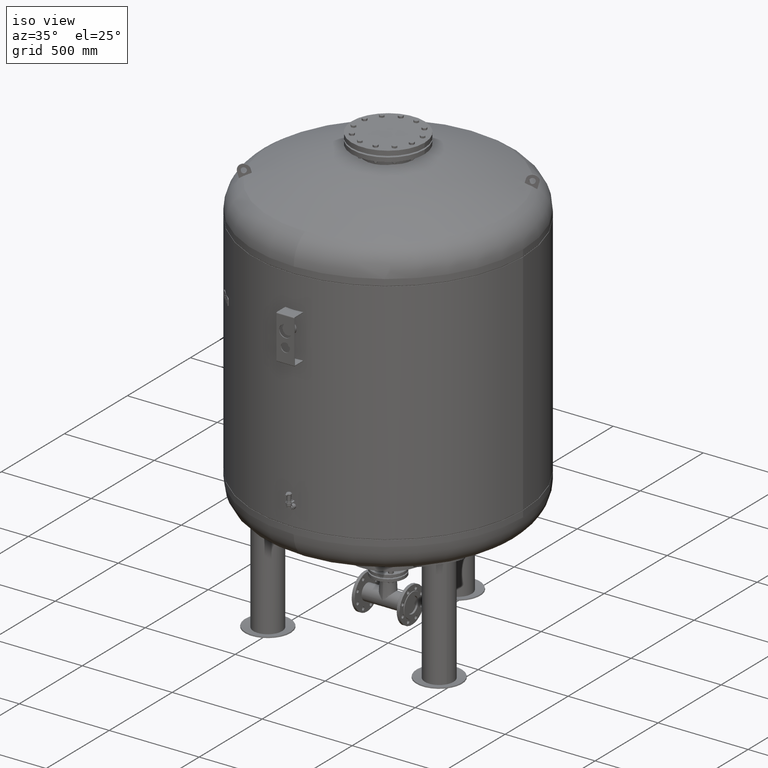
[diagram: clean part render]
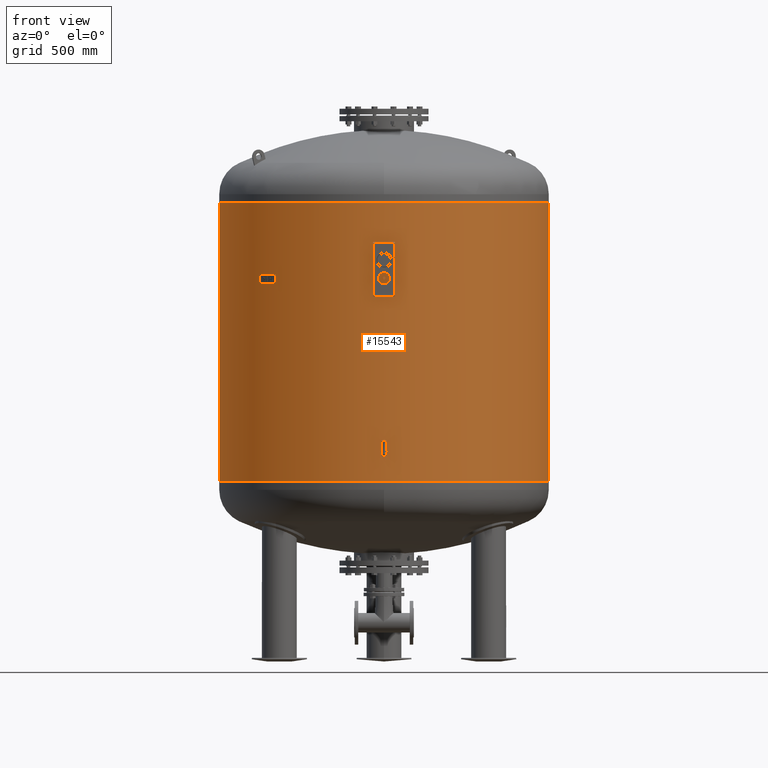
[diagram: tour spotlight — one face highlighted and labeled with its STEP entity id]
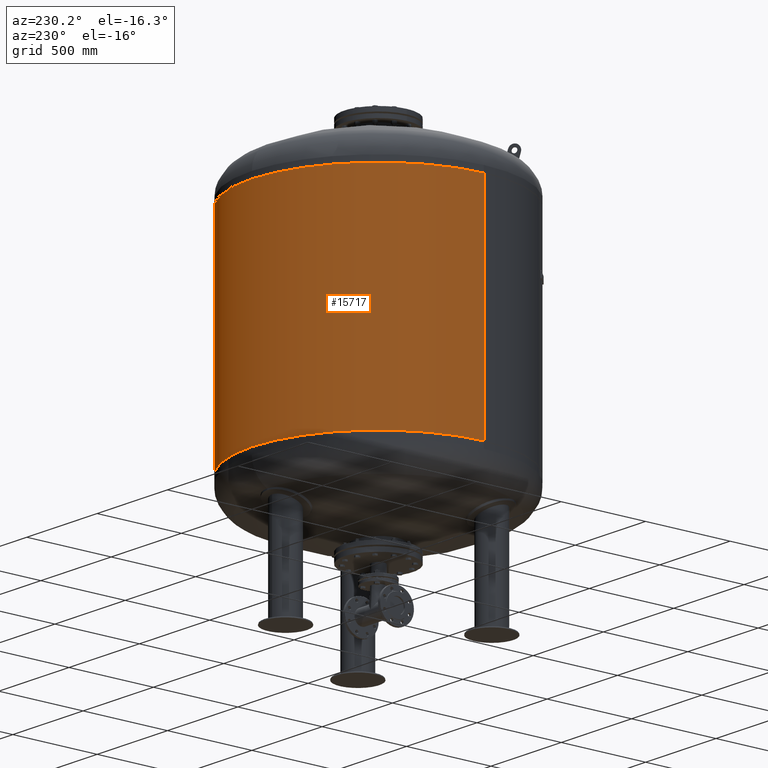
[diagram: tour spotlight — one face highlighted and labeled with its STEP entity id]
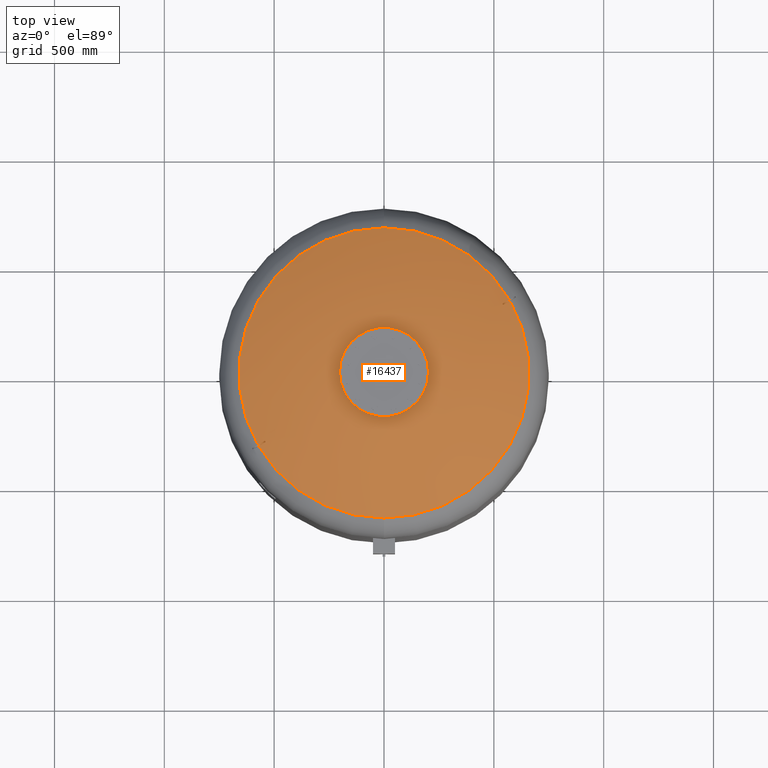
[diagram: tour spotlight — one face highlighted and labeled with its STEP entity id]
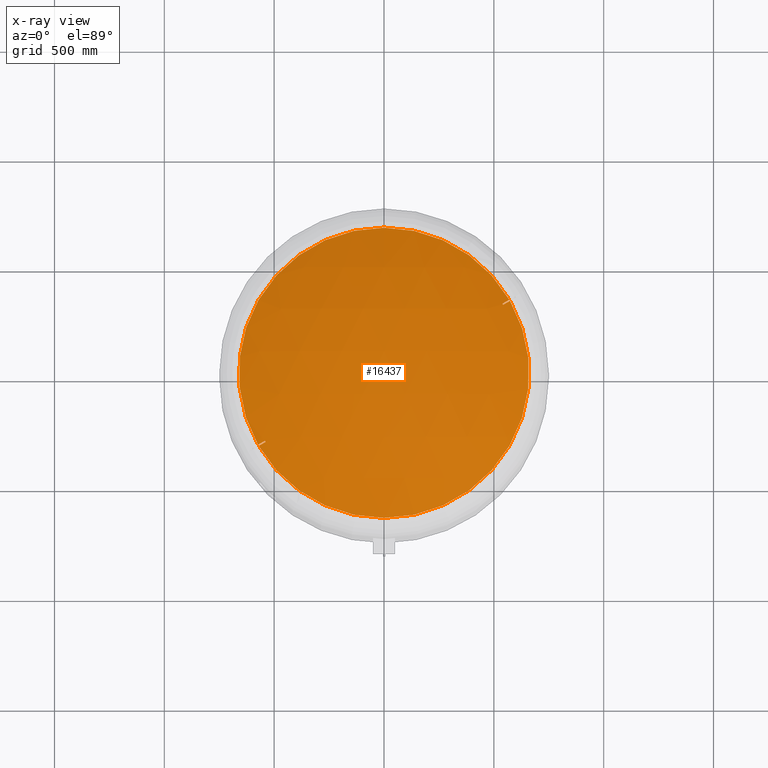
[diagram: x-ray of the same camera — body ghosted, this tour face saturated]
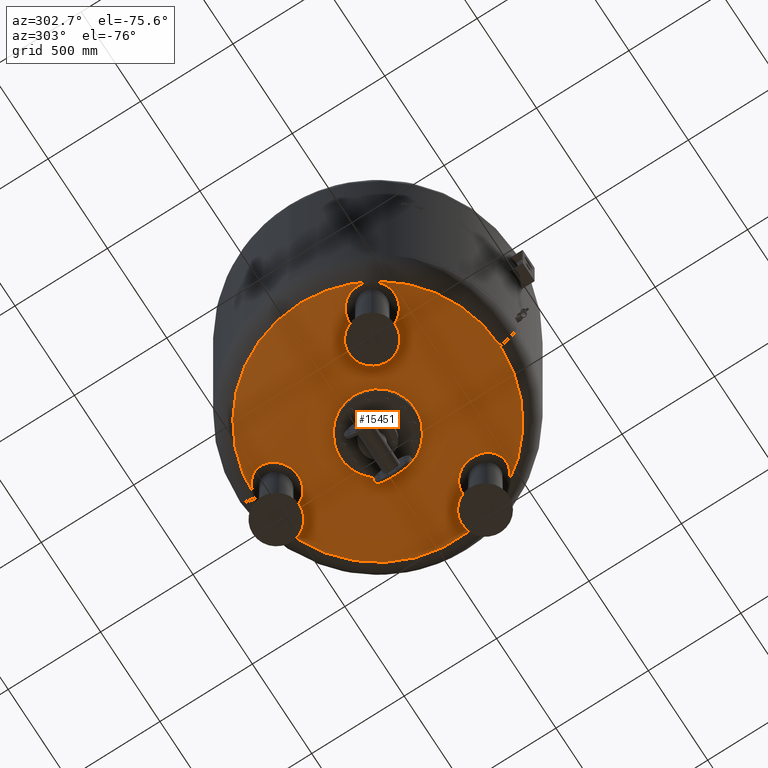
[diagram: tour spotlight — one face highlighted and labeled with its STEP entity id]
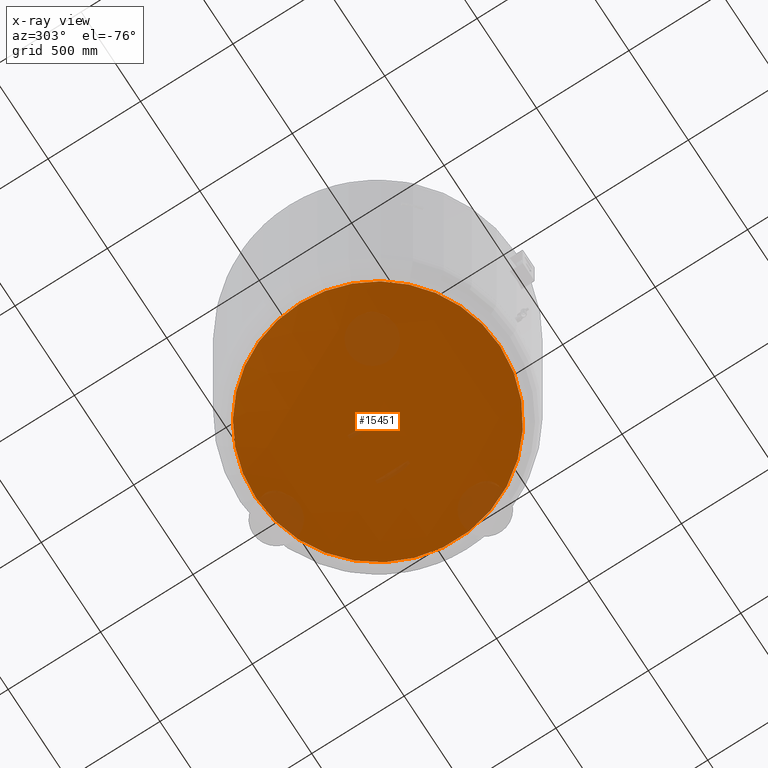
[diagram: x-ray of the same camera — body ghosted, this tour face saturated]
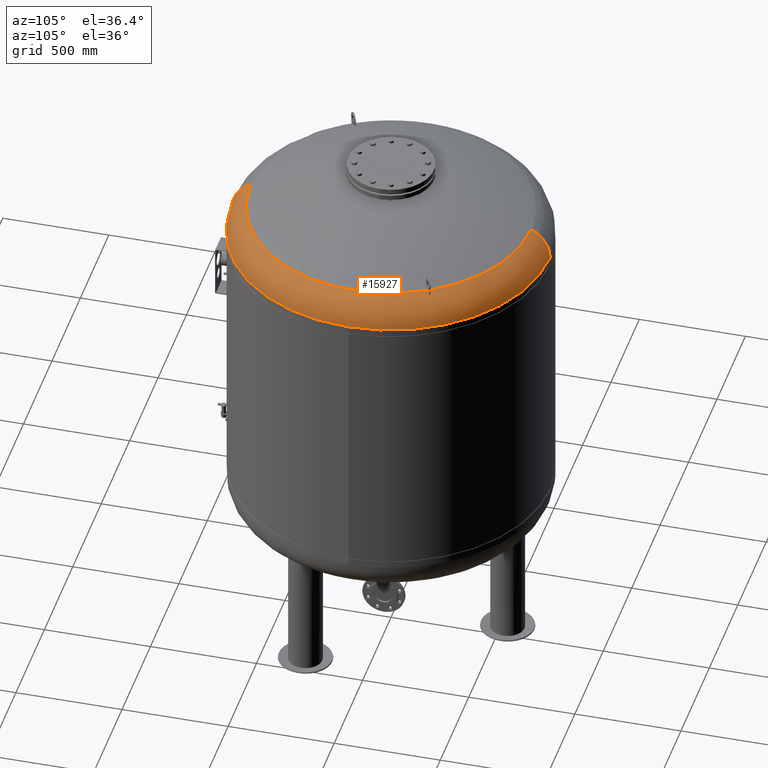
[diagram: tour spotlight — one face highlighted and labeled with its STEP entity id]
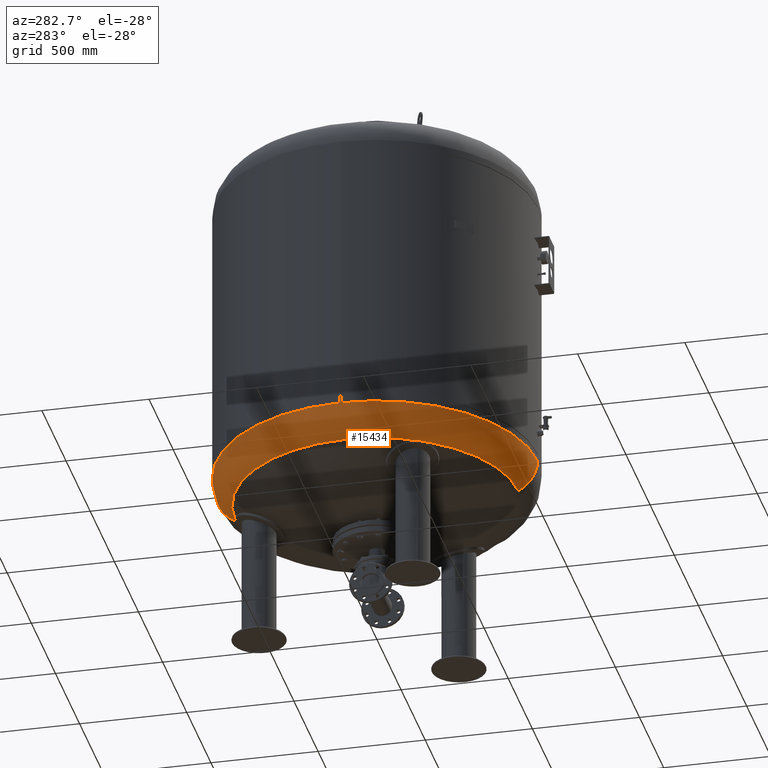
[diagram: tour spotlight — one face highlighted and labeled with its STEP entity id]
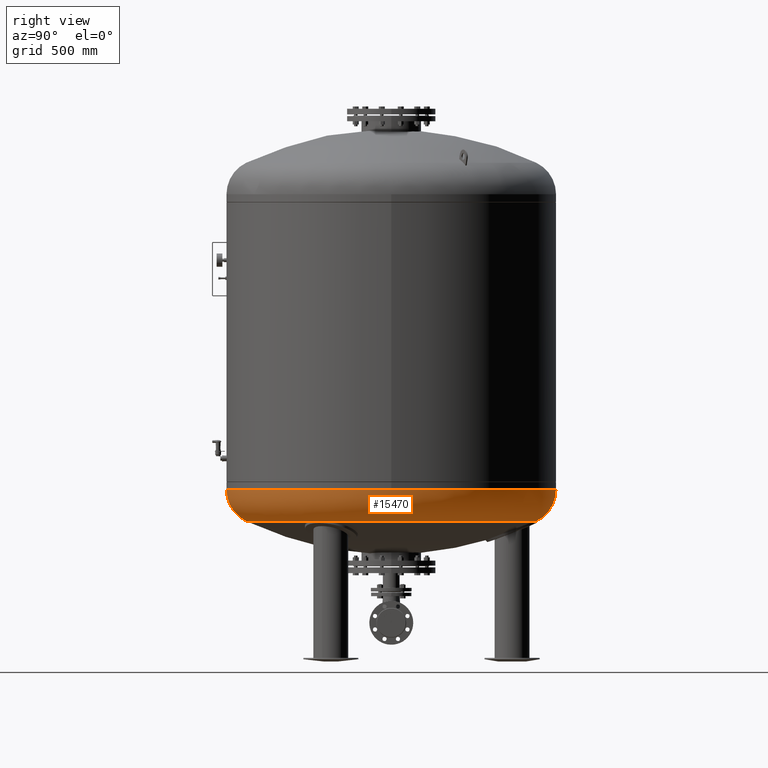
[diagram: tour spotlight — one face highlighted and labeled with its STEP entity id]
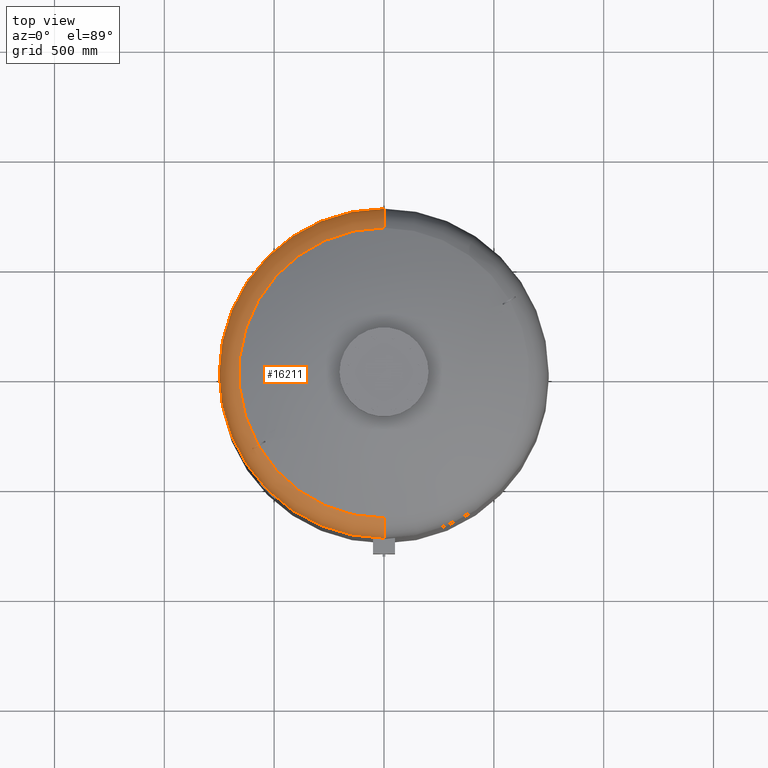
[diagram: tour spotlight — one face highlighted and labeled with its STEP entity id]
A machine part: a face-by-face anatomy tour. The part has 998 B-rep faces; the first image is the clean iso view, then the 8 largest visible faces are spotlighted one at a time (largest first), each with its STEP entity span.

Face 1 — front view, entity #15543. In plain terms, the highlighted cylindrical surface (partial cylindrical patch) has radius 750 mm, axis along (0, 0, 1).
Definition (entity closure, byte-faithful):
#15502=CARTESIAN_POINT('',(9.041626E-015,0.0,1782.0));
#15503=DIRECTION('',(2.670074E-017,0.0,1.0));
#15504=DIRECTION('',(1.0,0.0,0.0));
#15505=AXIS2_PLACEMENT_3D('',#15502,#15503,#15504);
#15506=CYLINDRICAL_SURFACE('',#15505,750.000000000000450);
#15507=CARTESIAN_POINT('',(750.000000000000570,0.0,2093.0));
#15508=VERTEX_POINT('',#15507);
#15509=CARTESIAN_POINT('',(749.999999999999890,0.0,822.999999999999770));
#15510=VERTEX_POINT('',#15509);
#15511=CARTESIAN_POINT('',(750.000000000000570,0.0,2093.0));
#15512=DIRECTION('',(0.0,0.0,-1.0));
#15513=VECTOR('',#15512,1270.000000000000200);
#15514=LINE('',#15511,#15513);
#15515=EDGE_CURVE('',#15508,#15510,#15514,.T.);
#15516=ORIENTED_EDGE('',*,*,#15515,.F.);
#15517=CARTESIAN_POINT('',(-750.000000000000450,-9.184548E-014,2093.0));
#15518=VERTEX_POINT('',#15517);
#15519=CARTESIAN_POINT('',(1.598721E-014,0.0,2093.0));
#15520=DIRECTION('',(0.0,0.0,1.0));
#15521=DIRECTION('',(1.0,0.0,0.0));
#15522=AXIS2_PLACEMENT_3D('',#15519,#15520,#15521);
#15523=CIRCLE('',#15522,750.000000000000570);
#15524=EDGE_CURVE('',#15518,#15508,#15523,.T.);
#15525=ORIENTED_EDGE('',*,*,#15524,.F.);
#15526=CARTESIAN_POINT('',(-749.999999999999890,-9.184548E-014,822.999999999999770));
#15527=VERTEX_POINT('',#15526);
#15528=CARTESIAN_POINT('',(-750.000000000000450,-9.184548E-014,2093.0));
#15529=DIRECTION('',(0.0,0.0,-1.0));
#15530=VECTOR('',#15529,1270.000000000000200);
#15531=LINE('',#15528,#15530);
#15532=EDGE_CURVE('',#15518,#15527,#15531,.T.);
#15533=ORIENTED_EDGE('',*,*,#15532,.T.);
#15534=CARTESIAN_POINT('',(-1.660786E-014,0.0,822.999999999999770));
#15535=DIRECTION('',(0.0,0.0,1.0));
#15536=DIRECTION('',(1.0,0.0,0.0));
#15537=AXIS2_PLACEMENT_3D('',#15534,#15535,#15536);
#15538=CIRCLE('',#15537,749.999999999999890);
#15539=EDGE_CURVE('',#15527,#15510,#15538,.T.);
#15540=ORIENTED_EDGE('',*,*,#15539,.T.);
#15541=EDGE_LOOP('',(#15516,#15525,#15533,#15540));
#15542=FACE_OUTER_BOUND('',#15541,.T.);
#15543=ADVANCED_FACE('',(#15542),#15506,.T.);

Face 2 — auxiliary view, entity #15717. In plain terms, the highlighted cylindrical surface (partial cylindrical patch) has radius 750 mm, axis along (0, 0, 1).
Definition (entity closure, byte-faithful):
#15507=CARTESIAN_POINT('',(750.000000000000570,0.0,2093.0));
#15508=VERTEX_POINT('',#15507);
#15509=CARTESIAN_POINT('',(749.999999999999890,0.0,822.999999999999770));
#15510=VERTEX_POINT('',#15509);
#15511=CARTESIAN_POINT('',(750.000000000000570,0.0,2093.0));
#15512=DIRECTION('',(0.0,0.0,-1.0));
#15513=VECTOR('',#15512,1270.000000000000200);
#15514=LINE('',#15511,#15513);
#15515=EDGE_CURVE('',#15508,#15510,#15514,.T.);
#15517=CARTESIAN_POINT('',(-750.000000000000450,-9.184548E-014,2093.0));
#15518=VERTEX_POINT('',#15517);
#15526=CARTESIAN_POINT('',(-749.999999999999890,-9.184548E-014,822.999999999999770));
#15527=VERTEX_POINT('',#15526);
#15528=CARTESIAN_POINT('',(-750.000000000000450,-9.184548E-014,2093.0));
#15529=DIRECTION('',(0.0,0.0,-1.0));
#15530=VECTOR('',#15529,1270.000000000000200);
#15531=LINE('',#15528,#15530);
#15532=EDGE_CURVE('',#15518,#15527,#15531,.T.);
#15642=CARTESIAN_POINT('',(-1.660786E-014,0.0,822.999999999999770));
#15643=DIRECTION('',(0.0,0.0,1.0));
#15644=DIRECTION('',(1.0,0.0,0.0));
#15645=AXIS2_PLACEMENT_3D('',#15642,#15643,#15644);
#15646=CIRCLE('',#15645,749.999999999999890);
#15647=EDGE_CURVE('',#15510,#15527,#15646,.T.);
#15657=CARTESIAN_POINT('',(1.598721E-014,0.0,2093.0));
#15658=DIRECTION('',(0.0,0.0,1.0));
#15659=DIRECTION('',(1.0,0.0,0.0));
#15660=AXIS2_PLACEMENT_3D('',#15657,#15658,#15659);
#15661=CIRCLE('',#15660,750.000000000000570);
#15662=EDGE_CURVE('',#15508,#15518,#15661,.T.);
#15706=CARTESIAN_POINT('',(9.041626E-015,0.0,1782.0));
#15707=DIRECTION('',(2.670074E-017,0.0,1.0));
#15708=DIRECTION('',(1.0,0.0,0.0));
#15709=AXIS2_PLACEMENT_3D('',#15706,#15707,#15708);
#15710=CYLINDRICAL_SURFACE('',#15709,750.000000000000450);
#15711=ORIENTED_EDGE('',*,*,#15515,.T.);
#15712=ORIENTED_EDGE('',*,*,#15647,.T.);
#15713=ORIENTED_EDGE('',*,*,#15532,.F.);
#15714=ORIENTED_EDGE('',*,*,#15662,.F.);
#15715=EDGE_LOOP('',(#15711,#15712,#15713,#15714));
#15716=FACE_OUTER_BOUND('',#15715,.T.);
#15717=ADVANCED_FACE('',(#15716),#15710,.T.);

Face 3 — top view, entity #16437. An x-ray twin of the same camera follows (body ghosted, this face saturated) — the face is partly hidden behind the body. In plain terms, the highlighted spherical surface has radius 1509 mm.
Definition (entity closure, byte-faithful):
#15841=CARTESIAN_POINT('',(2.782883E-014,-660.606666666666800,2273.716562866229200));
#15842=VERTEX_POINT('',#15841);
#15858=CARTESIAN_POINT('',(1.087271E-013,660.606666666666800,2273.716562866229200));
#15859=VERTEX_POINT('',#15858);
#15867=CARTESIAN_POINT('',(570.596255916202270,332.898003566943030,2273.716562866229200));
#15868=VERTEX_POINT('',#15867);
#15869=CARTESIAN_POINT('',(7.530601E-015,-2.797401E-014,2273.716562866229200));
#15870=DIRECTION('',(0.0,0.0,-1.0));
#15871=DIRECTION('',(1.0,0.0,0.0));
#15872=AXIS2_PLACEMENT_3D('',#15869,#15870,#15871);
#15873=CIRCLE('',#15872,660.606666666666800);
#15874=EDGE_CURVE('',#15859,#15868,#15873,.T.);
#15903=CARTESIAN_POINT('',(573.596255916202270,327.701851144236400,2273.716562866229200));
#15904=VERTEX_POINT('',#15903);
#15918=CARTESIAN_POINT('',(7.530601E-015,-2.797401E-014,2273.716562866229200));
#15919=DIRECTION('',(0.0,0.0,-1.0));
#15920=DIRECTION('',(1.0,0.0,0.0));
#15921=AXIS2_PLACEMENT_3D('',#15918,#15919,#15920);
#15922=CIRCLE('',#15921,660.606666666666800);
#15923=EDGE_CURVE('',#15904,#15842,#15922,.T.);
#15975=CARTESIAN_POINT('',(-570.596255916196580,-332.898003566952920,2273.716562866229700));
#15976=VERTEX_POINT('',#15975);
#15992=CARTESIAN_POINT('',(-539.004547741172360,-314.658522347942950,2290.879584180558100));
#15993=VERTEX_POINT('',#15992);
#15994=CARTESIAN_POINT('',(1.500000000005994,-2.598076211363742,917.0));
#15995=DIRECTION('',(0.499999999999994,-0.866025403784442,0.0));
#15996=DIRECTION('',(0.0,0.0,1.0));
#15997=AXIS2_PLACEMENT_3D('',#15994,#15995,#15996);
#15998=CIRCLE('',#15997,1508.997017889697400);
#15999=EDGE_CURVE('',#15993,#15976,#15998,.T.);
#16042=CARTESIAN_POINT('',(-542.004547741172470,-309.462369925236320,2290.879584180558100));
#16043=VERTEX_POINT('',#16042);
#16044=CARTESIAN_POINT('',(-195.850324208316520,-113.074237402545550,854.348481320245580));
#16045=DIRECTION('',(0.834590199910602,0.481850876581402,0.266981143436977));
#16046=DIRECTION('',(0.0,0.484652475916135,-0.874706795211036));
#16047=AXIS2_PLACEMENT_3D('',#16044,#16045,#16046);
#16048=CIRCLE('',#16047,1490.641692208577100);
#16049=EDGE_CURVE('',#16043,#15993,#16048,.T.);
#16127=CARTESIAN_POINT('',(-573.596255916196580,-327.701851144246290,2273.716562866229700));
#16128=VERTEX_POINT('',#16127);
#16151=CARTESIAN_POINT('',(-1.499999999993967,2.598076211342912,917.0));
#16152=DIRECTION('',(-0.499999999999994,0.866025403784442,0.0));
#16153=DIRECTION('',(0.0,0.0,-1.0));
#16154=AXIS2_PLACEMENT_3D('',#16151,#16152,#16153);
#16155=CIRCLE('',#16154,1508.997017889697400);
#16156=EDGE_CURVE('',#16128,#16043,#16155,.T.);
#16183=CARTESIAN_POINT('',(7.530601E-015,-2.797401E-014,2273.716562866229200));
#16184=DIRECTION('',(0.0,0.0,-1.0));
#16185=DIRECTION('',(1.0,0.0,0.0));
#16186=AXIS2_PLACEMENT_3D('',#16183,#16184,#16185);
#16187=CIRCLE('',#16186,660.606666666666800);
#16188=EDGE_CURVE('',#15842,#15976,#16187,.T.);
#16193=CARTESIAN_POINT('',(7.530601E-015,-2.797401E-014,2273.716562866229200));
#16194=DIRECTION('',(0.0,0.0,-1.0));
#16195=DIRECTION('',(1.0,0.0,0.0));
#16196=AXIS2_PLACEMENT_3D('',#16193,#16194,#16195);
#16197=CIRCLE('',#16196,660.606666666666800);
#16198=EDGE_CURVE('',#16128,#15859,#16197,.T.);
#16218=CARTESIAN_POINT('',(539.004547741178380,314.658522347932720,2290.879584180558100));
#16219=VERTEX_POINT('',#16218);
#16220=CARTESIAN_POINT('',(-1.499999999993948,2.598076211342792,917.0));
#16221=DIRECTION('',(-0.500000000000006,0.866025403784435,0.0));
#16222=DIRECTION('',(0.0,0.0,-1.0));
#16223=AXIS2_PLACEMENT_3D('',#16220,#16221,#16222);
#16224=CIRCLE('',#16223,1508.997017889697400);
#16225=EDGE_CURVE('',#16219,#15868,#16224,.T.);
#16268=CARTESIAN_POINT('',(542.004547741178380,309.462369925225970,2290.879584180558100));
#16269=VERTEX_POINT('',#16268);
#16270=CARTESIAN_POINT('',(195.850324208315390,113.074237402547780,854.348481320245360));
#16271=DIRECTION('',(-0.834590199910595,-0.481850876581413,0.266981143436977));
#16272=DIRECTION('',(0.0,0.484652475916126,0.874706795211040));
#16273=AXIS2_PLACEMENT_3D('',#16270,#16271,#16272);
#16274=CIRCLE('',#16273,1490.641692208577100);
#16275=EDGE_CURVE('',#16269,#16219,#16274,.T.);
#16406=CARTESIAN_POINT('',(1.500000000006090,-2.598076211363818,917.0));
#16407=DIRECTION('',(0.500000000000006,-0.866025403784435,0.0));
#16408=DIRECTION('',(0.0,0.0,1.0));
#16409=AXIS2_PLACEMENT_3D('',#16406,#16407,#16408);
#16410=CIRCLE('',#16409,1508.997017889697400);
#16411=EDGE_CURVE('',#15904,#16269,#16410,.T.);
#16420=CARTESIAN_POINT('',(1.607048E-013,-2.771988E-013,917.0));
#16421=DIRECTION('',(0.0,-1.0,0.0));
#16422=DIRECTION('',(-1.0,0.0,0.0));
#16423=AXIS2_PLACEMENT_3D('',#16420,#16421,#16422);
#16424=SPHERICAL_SURFACE('',#16423,1509.0);
#16425=ORIENTED_EDGE('',*,*,#15999,.T.);
#16426=ORIENTED_EDGE('',*,*,#16188,.F.);
#16427=ORIENTED_EDGE('',*,*,#15923,.F.);
#16428=ORIENTED_EDGE('',*,*,#16411,.T.);
#16429=ORIENTED_EDGE('',*,*,#16275,.T.);
#16430=ORIENTED_EDGE('',*,*,#16225,.T.);
#16431=ORIENTED_EDGE('',*,*,#15874,.F.);
#16432=ORIENTED_EDGE('',*,*,#16198,.F.);
#16433=ORIENTED_EDGE('',*,*,#16156,.T.);
#16434=ORIENTED_EDGE('',*,*,#16049,.T.);
#16435=EDGE_LOOP('',(#16425,#16426,#16427,#16428,#16429,#16430,#16431,#16432,#16433,#16434));
#16436=FACE_OUTER_BOUND('',#16435,.T.);
#16437=ADVANCED_FACE('',(#16436),#16424,.T.);

Face 4 — auxiliary view, entity #15451. An x-ray twin of the same camera follows (body ghosted, this face saturated) — the face is partly hidden behind the body. In plain terms, the highlighted spherical surface has radius 1509 mm.
Definition (entity closure, byte-faithful):
#15390=CARTESIAN_POINT('',(-4.647817E-014,-660.606666666666800,642.283437133770350));
#15391=VERTEX_POINT('',#15390);
#15407=CARTESIAN_POINT('',(-1.273765E-013,660.606666666666800,642.283437133770800));
#15408=VERTEX_POINT('',#15407);
#15416=CARTESIAN_POINT('',(-660.606666666666800,-2.797401E-014,642.283437133770460));
#15417=VERTEX_POINT('',#15416);
#15418=CARTESIAN_POINT('',(-2.617994E-014,-2.797401E-014,642.283437133770580));
#15419=DIRECTION('',(0.0,0.0,1.0));
#15420=DIRECTION('',(-1.0,0.0,0.0));
#15421=AXIS2_PLACEMENT_3D('',#15418,#15419,#15420);
#15422=CIRCLE('',#15421,660.606666666666800);
#15423=EDGE_CURVE('',#15408,#15417,#15422,.T.);
#15425=CARTESIAN_POINT('',(-2.617994E-014,-2.797401E-014,642.283437133770580));
#15426=DIRECTION('',(0.0,0.0,1.0));
#15427=DIRECTION('',(-1.0,0.0,0.0));
#15428=AXIS2_PLACEMENT_3D('',#15425,#15426,#15427);
#15429=CIRCLE('',#15428,660.606666666666800);
#15430=EDGE_CURVE('',#15417,#15391,#15429,.T.);
#15435=CARTESIAN_POINT('',(-3.455040E-013,-2.771988E-013,1999.0));
#15436=DIRECTION('',(0.0,-1.0,0.0));
#15437=DIRECTION('',(1.0,0.0,0.0));
#15438=AXIS2_PLACEMENT_3D('',#15435,#15436,#15437);
#15439=SPHERICAL_SURFACE('',#15438,1509.0);
#15440=ORIENTED_EDGE('',*,*,#15430,.F.);
#15441=ORIENTED_EDGE('',*,*,#15423,.F.);
#15442=CARTESIAN_POINT('',(-2.617994E-014,-2.797401E-014,642.283437133770580));
#15443=DIRECTION('',(0.0,0.0,1.0));
#15444=DIRECTION('',(-1.0,0.0,0.0));
#15445=AXIS2_PLACEMENT_3D('',#15442,#15443,#15444);
#15446=CIRCLE('',#15445,660.606666666666800);
#15447=EDGE_CURVE('',#15391,#15408,#15446,.T.);
#15448=ORIENTED_EDGE('',*,*,#15447,.F.);
#15449=EDGE_LOOP('',(#15440,#15441,#15448));
#15450=FACE_OUTER_BOUND('',#15449,.T.);
#15451=ADVANCED_FACE('',(#15450),#15439,.T.);

Face 5 — auxiliary view, entity #15927. In plain terms, the highlighted toroidal blend (fillet) surface has major radius 591 mm and minor (blend) radius 159 mm.
Definition (entity closure, byte-faithful):
#15727=CARTESIAN_POINT('',(750.0,-5.423428E-014,2130.762332584101800));
#15728=VERTEX_POINT('',#15727);
#15752=CARTESIAN_POINT('',(1.267436E-013,750.0,2130.762332584101800));
#15753=VERTEX_POINT('',#15752);
#15761=CARTESIAN_POINT('',(1.459986E-014,-5.423428E-014,2130.762332584101800));
#15762=DIRECTION('',(0.0,0.0,-1.0));
#15763=DIRECTION('',(1.0,0.0,0.0));
#15764=AXIS2_PLACEMENT_3D('',#15761,#15762,#15763);
#15765=CIRCLE('',#15764,750.0);
#15766=EDGE_CURVE('',#15753,#15728,#15765,.T.);
#15834=CARTESIAN_POINT('',(3.489809E-014,-5.423428E-014,2130.762332584101800));
#15835=DIRECTION('',(4.945121E-017,-1.836970E-016,-1.0));
#15836=DIRECTION('',(0.0,-1.0,0.0));
#15837=AXIS2_PLACEMENT_3D('',#15834,#15835,#15836);
#15838=TOROIDAL_SURFACE('',#15837,591.0,159.0);
#15839=CARTESIAN_POINT('',(3.489809E-014,-750.0,2130.762332584101800));
#15840=VERTEX_POINT('',#15839);
#15841=CARTESIAN_POINT('',(2.782883E-014,-660.606666666666800,2273.716562866229200));
#15842=VERTEX_POINT('',#15841);
#15843=CARTESIAN_POINT('',(3.489809E-014,-591.0,2130.762332584101800));
#15844=DIRECTION('',(-1.0,0.0,0.0));
#15845=DIRECTION('',(0.0,-1.0,0.0));
#15846=AXIS2_PLACEMENT_3D('',#15843,#15844,#15845);
#15847=CIRCLE('',#15846,159.0);
#15848=EDGE_CURVE('',#15840,#15842,#15847,.T.);
#15849=ORIENTED_EDGE('',*,*,#15848,.F.);
#15850=CARTESIAN_POINT('',(1.459986E-014,-5.423428E-014,2130.762332584101800));
#15851=DIRECTION('',(0.0,0.0,-1.0));
#15852=DIRECTION('',(1.0,0.0,0.0));
#15853=AXIS2_PLACEMENT_3D('',#15850,#15851,#15852);
#15854=CIRCLE('',#15853,750.0);
#15855=EDGE_CURVE('',#15728,#15840,#15854,.T.);
#15856=ORIENTED_EDGE('',*,*,#15855,.F.);
#15857=ORIENTED_EDGE('',*,*,#15766,.F.);
#15858=CARTESIAN_POINT('',(1.087271E-013,660.606666666666800,2273.716562866229200));
#15859=VERTEX_POINT('',#15858);
#15860=CARTESIAN_POINT('',(1.072723E-013,591.0,2130.762332584101800));
#15861=DIRECTION('',(1.0,0.0,0.0));
#15862=DIRECTION('',(0.0,1.0,0.0));
#15863=AXIS2_PLACEMENT_3D('',#15860,#15861,#15862);
#15864=CIRCLE('',#15863,159.0);
#15865=EDGE_CURVE('',#15753,#15859,#15864,.T.);
#15866=ORIENTED_EDGE('',*,*,#15865,.T.);
#15867=CARTESIAN_POINT('',(570.596255916202270,332.898003566943030,2273.716562866229200));
#15868=VERTEX_POINT('',#15867);
#15869=CARTESIAN_POINT('',(7.530601E-015,-2.797401E-014,2273.716562866229200));
#15870=DIRECTION('',(0.0,0.0,-1.0));
#15871=DIRECTION('',(1.0,0.0,0.0));
#15872=AXIS2_PLACEMENT_3D('',#15869,#15870,#15871);
#15873=CIRCLE('',#15872,660.606666666666800);
#15874=EDGE_CURVE('',#15859,#15868,#15873,.T.);
#15875=ORIENTED_EDGE('',*,*,#15874,.T.);
#15876=CARTESIAN_POINT('',(588.588482349337030,343.285820341434260,2261.575471650438900));
#15877=VERTEX_POINT('',#15876);
#15878=CARTESIAN_POINT('',(570.596255916202270,332.898003566943030,2273.716562866229200));
#15879=CARTESIAN_POINT('',(572.054041405254220,333.739656411467930,2272.896943261032400));
#15880=CARTESIAN_POINT('',(573.514867502697370,334.583064752065810,2272.038760350182700));
#15881=CARTESIAN_POINT('',(576.976511612975400,336.581645910973690,2269.912932457119000));
#15882=CARTESIAN_POINT('',(578.974781685762880,337.735347675411160,2268.612126014599200));
#15883=CARTESIAN_POINT('',(582.931774475123920,340.019918527530190,2265.881544856047600));
#15884=CARTESIAN_POINT('',(584.890496100696050,341.150786985321820,2264.451768031998700));
#15885=CARTESIAN_POINT('',(587.410277309621960,342.605583344594150,2262.507652363015000));
#15886=CARTESIAN_POINT('',(588.001091399301120,342.946690018311470,2262.044094471851200));
#15887=CARTESIAN_POINT('',(588.588482349337030,343.285820341434260,2261.575471650438900));
#15888=B_SPLINE_CURVE_WITH_KNOTS('',3,(#15878,#15879,#15880,#15881,#15882,#15883,#15884,#15885,#15886,#15887),.UNSPECIFIED.,.F.,.U.,(4,2,2,2,4),(774.656358350488740,780.010685689572260,787.369273058092740,794.727860426613230,796.996990205935960),.UNSPECIFIED.);
#15889=EDGE_CURVE('',#15868,#15877,#15888,.T.);
#15890=ORIENTED_EDGE('',*,*,#15889,.T.);
#15891=CARTESIAN_POINT('',(591.588482349336690,338.089667918727570,2261.575471650438900));
#15892=VERTEX_POINT('',#15891);
#15893=CARTESIAN_POINT('',(588.588482349337030,343.285820341434260,2261.575471650438900));
#15894=CARTESIAN_POINT('',(589.090111222559810,342.418391231101340,2261.578030124753200));
#15895=CARTESIAN_POINT('',(589.590425441357980,341.552525995023070,2261.579301453786200));
#15896=CARTESIAN_POINT('',(590.089401200233620,340.688274628905390,2261.579301453786200));
#15897=CARTESIAN_POINT('',(590.588376959112570,339.824023262781680,2261.579301453786200));
#15898=CARTESIAN_POINT('',(591.088081140414260,338.957805821382750,2261.578030124753200));
#15899=CARTESIAN_POINT('',(591.588482349336690,338.089667918727570,2261.575471650438900));
#15900=B_SPLINE_CURVE_WITH_KNOTS('',3,(#15893,#15894,#15895,#15896,#15897,#15898,#15899),.UNSPECIFIED.,.F.,.U.,(4,3,4),(-2.993854553253430,0.0,2.993854553273963),.UNSPECIFIED.);
#15901=EDGE_CURVE('',#15877,#15892,#15900,.T.);
#15902=ORIENTED_EDGE('',*,*,#15901,.T.);
#15903=CARTESIAN_POINT('',(573.596255916202270,327.701851144236400,2273.716562866229200));
#15904=VERTEX_POINT('',#15903);
#15905=CARTESIAN_POINT('',(591.588482349336690,338.089667918727570,2261.575471650438900));
#15906=CARTESIAN_POINT('',(591.001034993602270,337.750505029759610,2262.044139472540300));
#15907=CARTESIAN_POINT('',(590.410163811151510,337.409365393515030,2262.507741414689900));
#15908=CARTESIAN_POINT('',(587.890327860486420,335.954537429084780,2264.451893026950100));
#15909=CARTESIAN_POINT('',(585.931609407500670,334.823670802986780,2265.881663004374300));
#15910=CARTESIAN_POINT('',(581.974623379374860,332.539103854468750,2268.612231014925300));
#15911=CARTESIAN_POINT('',(579.976356895234860,331.385404161938030,2269.913031156073000));
#15912=CARTESIAN_POINT('',(576.514766784393940,329.386854179619720,2272.038819520509200));
#15913=CARTESIAN_POINT('',(575.053991207979040,328.543475007350930,2272.896971483751700));
#15914=CARTESIAN_POINT('',(573.596255916202270,327.701851144236400,2273.716562866229200));
#15915=B_SPLINE_CURVE_WITH_KNOTS('',3,(#15905,#15906,#15907,#15908,#15909,#15910,#15911,#15912,#15913,#15914),.UNSPECIFIED.,.F.,.U.,(4,2,2,2,4),(144.901644365231360,147.170992146182750,154.529560626149700,161.888129106116650,167.242268222433860),.UNSPECIFIED.);
#15916=EDGE_CURVE('',#15892,#15904,#15915,.T.);
#15917=ORIENTED_EDGE('',*,*,#15916,.T.);
#15918=CARTESIAN_POINT('',(7.530601E-015,-2.797401E-014,2273.716562866229200));
#15919=DIRECTION('',(0.0,0.0,-1.0));
#15920=DIRECTION('',(1.0,0.0,0.0));
#15921=AXIS2_PLACEMENT_3D('',#15918,#15919,#15920);
#15922=CIRCLE('',#15921,660.606666666666800);
#15923=EDGE_CURVE('',#15904,#15842,#15922,.T.);
#15924=ORIENTED_EDGE('',*,*,#15923,.T.);
#15925=EDGE_LOOP('',(#15849,#15856,#15857,#15866,#15875,#15890,#15902,#15917,#15924));
#15926=FACE_OUTER_BOUND('',#15925,.T.);
#15927=ADVANCED_FACE('',(#15926),#15838,.T.);

Face 6 — auxiliary view, entity #15434. In plain terms, the highlighted toroidal blend (fillet) surface has major radius 591 mm and minor (blend) radius 159 mm.
Definition (entity closure, byte-faithful):
#15339=CARTESIAN_POINT('',(-750.0,-5.423428E-014,785.237667415897930));
#15340=VERTEX_POINT('',#15339);
#15364=CARTESIAN_POINT('',(-1.628998E-013,750.0,785.237667415898270));
#15365=VERTEX_POINT('',#15364);
#15373=CARTESIAN_POINT('',(-5.075605E-014,-5.423428E-014,785.237667415898160));
#15374=DIRECTION('',(0.0,0.0,1.0));
#15375=DIRECTION('',(-1.0,0.0,0.0));
#15376=AXIS2_PLACEMENT_3D('',#15373,#15374,#15375);
#15377=CIRCLE('',#15376,750.0);
#15378=EDGE_CURVE('',#15365,#15340,#15377,.T.);
#15383=CARTESIAN_POINT('',(-7.105427E-014,-5.423428E-014,785.237667415898160));
#15384=DIRECTION('',(-1.719159E-016,-1.836970E-016,1.0));
#15385=DIRECTION('',(0.0,-1.0,0.0));
#15386=AXIS2_PLACEMENT_3D('',#15383,#15384,#15385);
#15387=TOROIDAL_SURFACE('',#15386,591.0,159.0);
#15388=CARTESIAN_POINT('',(-7.105427E-014,-750.0,785.237667415898040));
#15389=VERTEX_POINT('',#15388);
#15390=CARTESIAN_POINT('',(-4.647817E-014,-660.606666666666800,642.283437133770350));
#15391=VERTEX_POINT('',#15390);
#15392=CARTESIAN_POINT('',(-7.105427E-014,-591.0,785.237667415898040));
#15393=DIRECTION('',(1.0,0.0,0.0));
#15394=DIRECTION('',(0.0,-1.0,0.0));
#15395=AXIS2_PLACEMENT_3D('',#15392,#15393,#15394);
#15396=CIRCLE('',#15395,159.0);
#15397=EDGE_CURVE('',#15389,#15391,#15396,.T.);
#15398=ORIENTED_EDGE('',*,*,#15397,.F.);
#15399=CARTESIAN_POINT('',(-5.075605E-014,-5.423428E-014,785.237667415898160));
#15400=DIRECTION('',(0.0,0.0,1.0));
#15401=DIRECTION('',(-1.0,0.0,0.0));
#15402=AXIS2_PLACEMENT_3D('',#15399,#15400,#15401);
#15403=CIRCLE('',#15402,750.0);
#15404=EDGE_CURVE('',#15340,#15389,#15403,.T.);
#15405=ORIENTED_EDGE('',*,*,#15404,.F.);
#15406=ORIENTED_EDGE('',*,*,#15378,.F.);
#15407=CARTESIAN_POINT('',(-1.273765E-013,660.606666666666800,642.283437133770800));
#15408=VERTEX_POINT('',#15407);
#15409=CARTESIAN_POINT('',(-1.434285E-013,591.0,785.237667415898270));
#15410=DIRECTION('',(-1.0,0.0,0.0));
#15411=DIRECTION('',(0.0,1.0,0.0));
#15412=AXIS2_PLACEMENT_3D('',#15409,#15410,#15411);
#15413=CIRCLE('',#15412,159.0);
#15414=EDGE_CURVE('',#15365,#15408,#15413,.T.);
#15415=ORIENTED_EDGE('',*,*,#15414,.T.);
#15416=CARTESIAN_POINT('',(-660.606666666666800,-2.797401E-014,642.283437133770460));
#15417=VERTEX_POINT('',#15416);
#15418=CARTESIAN_POINT('',(-2.617994E-014,-2.797401E-014,642.283437133770580));
#15419=DIRECTION('',(0.0,0.0,1.0));
#15420=DIRECTION('',(-1.0,0.0,0.0));
#15421=AXIS2_PLACEMENT_3D('',#15418,#15419,#15420);
#15422=CIRCLE('',#15421,660.606666666666800);
#15423=EDGE_CURVE('',#15408,#15417,#15422,.T.);
#15424=ORIENTED_EDGE('',*,*,#15423,.T.);
#15425=CARTESIAN_POINT('',(-2.617994E-014,-2.797401E-014,642.283437133770580));
#15426=DIRECTION('',(0.0,0.0,1.0));
#15427=DIRECTION('',(-1.0,0.0,0.0));
#15428=AXIS2_PLACEMENT_3D('',#15425,#15426,#15427);
#15429=CIRCLE('',#15428,660.606666666666800);
#15430=EDGE_CURVE('',#15417,#15391,#15429,.T.);
#15431=ORIENTED_EDGE('',*,*,#15430,.T.);
#15432=EDGE_LOOP('',(#15398,#15405,#15406,#15415,#15424,#15431));
#15433=FACE_OUTER_BOUND('',#15432,.T.);
#15434=ADVANCED_FACE('',(#15433),#15387,.T.);

Face 7 — right view, entity #15470. In plain terms, the highlighted toroidal blend (fillet) surface has major radius 591 mm and minor (blend) radius 159 mm.
Definition (entity closure, byte-faithful):
#15356=CARTESIAN_POINT('',(750.0,3.761120E-014,785.237667415898160));
#15357=VERTEX_POINT('',#15356);
#15364=CARTESIAN_POINT('',(-1.628998E-013,750.0,785.237667415898270));
#15365=VERTEX_POINT('',#15364);
#15366=CARTESIAN_POINT('',(-5.075605E-014,-5.423428E-014,785.237667415898160));
#15367=DIRECTION('',(0.0,0.0,1.0));
#15368=DIRECTION('',(-1.0,0.0,0.0));
#15369=AXIS2_PLACEMENT_3D('',#15366,#15367,#15368);
#15370=CIRCLE('',#15369,750.0);
#15371=EDGE_CURVE('',#15357,#15365,#15370,.T.);
#15388=CARTESIAN_POINT('',(-7.105427E-014,-750.0,785.237667415898040));
#15389=VERTEX_POINT('',#15388);
#15390=CARTESIAN_POINT('',(-4.647817E-014,-660.606666666666800,642.283437133770350));
#15391=VERTEX_POINT('',#15390);
#15392=CARTESIAN_POINT('',(-7.105427E-014,-591.0,785.237667415898040));
#15393=DIRECTION('',(1.0,0.0,0.0));
#15394=DIRECTION('',(0.0,-1.0,0.0));
#15395=AXIS2_PLACEMENT_3D('',#15392,#15393,#15394);
#15396=CIRCLE('',#15395,159.0);
#15397=EDGE_CURVE('',#15389,#15391,#15396,.T.);
#15407=CARTESIAN_POINT('',(-1.273765E-013,660.606666666666800,642.283437133770800));
#15408=VERTEX_POINT('',#15407);
#15409=CARTESIAN_POINT('',(-1.434285E-013,591.0,785.237667415898270));
#15410=DIRECTION('',(-1.0,0.0,0.0));
#15411=DIRECTION('',(0.0,1.0,0.0));
#15412=AXIS2_PLACEMENT_3D('',#15409,#15410,#15411);
#15413=CIRCLE('',#15412,159.0);
#15414=EDGE_CURVE('',#15365,#15408,#15413,.T.);
#15442=CARTESIAN_POINT('',(-2.617994E-014,-2.797401E-014,642.283437133770580));
#15443=DIRECTION('',(0.0,0.0,1.0));
#15444=DIRECTION('',(-1.0,0.0,0.0));
#15445=AXIS2_PLACEMENT_3D('',#15442,#15443,#15444);
#15446=CIRCLE('',#15445,660.606666666666800);
#15447=EDGE_CURVE('',#15391,#15408,#15446,.T.);
#15452=CARTESIAN_POINT('',(-7.105427E-014,-5.423428E-014,785.237667415898160));
#15453=DIRECTION('',(-1.719159E-016,-1.836970E-016,1.0));
#15454=DIRECTION('',(0.0,-1.0,0.0));
#15455=AXIS2_PLACEMENT_3D('',#15452,#15453,#15454);
#15456=TOROIDAL_SURFACE('',#15455,591.0,159.0);
#15457=ORIENTED_EDGE('',*,*,#15397,.T.);
#15458=ORIENTED_EDGE('',*,*,#15447,.T.);
#15459=ORIENTED_EDGE('',*,*,#15414,.F.);
#15460=ORIENTED_EDGE('',*,*,#15371,.F.);
#15461=CARTESIAN_POINT('',(-5.075605E-014,-5.423428E-014,785.237667415898160));
#15462=DIRECTION('',(0.0,0.0,1.0));
#15463=DIRECTION('',(-1.0,0.0,0.0));
#15464=AXIS2_PLACEMENT_3D('',#15461,#15462,#15463);
#15465=CIRCLE('',#15464,750.0);
#15466=EDGE_CURVE('',#15389,#15357,#15465,.T.);
#15467=ORIENTED_EDGE('',*,*,#15466,.F.);
#15468=EDGE_LOOP('',(#15457,#15458,#15459,#15460,#15467));
#15469=FACE_OUTER_BOUND('',#15468,.T.);
#15470=ADVANCED_FACE('',(#15469),#15456,.T.);

Face 8 — top view, entity #16211. In plain terms, the highlighted toroidal blend (fillet) surface has major radius 591 mm and minor (blend) radius 159 mm.
Definition (entity closure, byte-faithful):
#15744=CARTESIAN_POINT('',(-750.0,3.761120E-014,2130.762332584101800));
#15745=VERTEX_POINT('',#15744);
#15752=CARTESIAN_POINT('',(1.267436E-013,750.0,2130.762332584101800));
#15753=VERTEX_POINT('',#15752);
#15754=CARTESIAN_POINT('',(1.459986E-014,-5.423428E-014,2130.762332584101800));
#15755=DIRECTION('',(0.0,0.0,-1.0));
#15756=DIRECTION('',(1.0,0.0,0.0));
#15757=AXIS2_PLACEMENT_3D('',#15754,#15755,#15756);
#15758=CIRCLE('',#15757,750.0);
#15759=EDGE_CURVE('',#15745,#15753,#15758,.T.);
#15839=CARTESIAN_POINT('',(3.489809E-014,-750.0,2130.762332584101800));
#15840=VERTEX_POINT('',#15839);
#15841=CARTESIAN_POINT('',(2.782883E-014,-660.606666666666800,2273.716562866229200));
#15842=VERTEX_POINT('',#15841);
#15843=CARTESIAN_POINT('',(3.489809E-014,-591.0,2130.762332584101800));
#15844=DIRECTION('',(-1.0,0.0,0.0));
#15845=DIRECTION('',(0.0,-1.0,0.0));
#15846=AXIS2_PLACEMENT_3D('',#15843,#15844,#15845);
#15847=CIRCLE('',#15846,159.0);
#15848=EDGE_CURVE('',#15840,#15842,#15847,.T.);
#15858=CARTESIAN_POINT('',(1.087271E-013,660.606666666666800,2273.716562866229200));
#15859=VERTEX_POINT('',#15858);
#15860=CARTESIAN_POINT('',(1.072723E-013,591.0,2130.762332584101800));
#15861=DIRECTION('',(1.0,0.0,0.0));
#15862=DIRECTION('',(0.0,1.0,0.0));
#15863=AXIS2_PLACEMENT_3D('',#15860,#15861,#15862);
#15864=CIRCLE('',#15863,159.0);
#15865=EDGE_CURVE('',#15753,#15859,#15864,.T.);
#15975=CARTESIAN_POINT('',(-570.596255916196580,-332.898003566952920,2273.716562866229700));
#15976=VERTEX_POINT('',#15975);
#15977=CARTESIAN_POINT('',(-588.588482349331340,-343.285820341443810,2261.575471650438900));
#15978=VERTEX_POINT('',#15977);
#15979=CARTESIAN_POINT('',(-570.596255916196580,-332.898003566952920,2273.716562866229700));
#15980=CARTESIAN_POINT('',(-572.053991207973350,-333.739627430067460,2272.896971483751700));
#15981=CARTESIAN_POINT('',(-573.514766784388030,-334.583006602336130,2272.038819520509200));
#15982=CARTESIAN_POINT('',(-576.976356895228950,-336.581556584654270,2269.913031156073000));
#15983=CARTESIAN_POINT('',(-578.974623379368950,-337.735256277185040,2268.612231014925300));
#15984=CARTESIAN_POINT('',(-582.931609407494880,-340.019823225703130,2265.881663004374300));
#15985=CARTESIAN_POINT('',(-584.890327860480620,-341.150689851801190,2264.451893026950500));
#15986=CARTESIAN_POINT('',(-587.410163811145820,-342.605517816231330,2262.507741414689900));
#15987=CARTESIAN_POINT('',(-588.001034993596930,-342.946657452475790,2262.044139472540300));
#15988=CARTESIAN_POINT('',(-588.588482349331340,-343.285820341443810,2261.575471650438900));
#15989=B_SPLINE_CURVE_WITH_KNOTS('',3,(#15979,#15980,#15981,#15982,#15983,#15984,#15985,#15986,#15987,#15988),.UNSPECIFIED.,.F.,.U.,(4,2,2,2,4),(774.656357685334110,780.010496801651020,787.369065281617960,794.727633761584910,796.996981542536560),.UNSPECIFIED.);
#15990=EDGE_CURVE('',#15976,#15978,#15989,.T.);
#16092=CARTESIAN_POINT('',(-591.588482349331340,-338.089667918737230,2261.575471650438900));
#16093=VERTEX_POINT('',#16092);
#16094=CARTESIAN_POINT('',(-588.588482349331340,-343.285820341443810,2261.575471650438900));
#16095=CARTESIAN_POINT('',(-589.090111222557650,-342.418391231104920,2261.578030124753200));
#16096=CARTESIAN_POINT('',(-589.590425441359340,-341.552525995020690,2261.579301453786200));
#16097=CARTESIAN_POINT('',(-590.089401200238290,-340.688274628897030,2261.579301453786200));
#16098=CARTESIAN_POINT('',(-590.588376959113930,-339.824023262779290,2261.579301453786200));
#16099=CARTESIAN_POINT('',(-591.088081140412330,-338.957805821386390,2261.578030124753200));
#16100=CARTESIAN_POINT('',(-591.588482349331340,-338.089667918737230,2261.575471650438900));
#16101=B_SPLINE_CURVE_WITH_KNOTS('',3,(#16094,#16095,#16096,#16097,#16098,#16099,#16100),.UNSPECIFIED.,.F.,.U.,(4,3,4),(-2.993854553274037,0.0,2.993854553253479),.UNSPECIFIED.);
#16102=EDGE_CURVE('',#15978,#16093,#16101,.T.);
#16127=CARTESIAN_POINT('',(-573.596255916196580,-327.701851144246290,2273.716562866229700));
#16128=VERTEX_POINT('',#16127);
#16129=CARTESIAN_POINT('',(-591.588482349331340,-338.089667918737230,2261.575471650438900));
#16130=CARTESIAN_POINT('',(-591.001091399295430,-337.750537595614450,2262.044094471851200));
#16131=CARTESIAN_POINT('',(-590.410277309616280,-337.409430921897070,2262.507652363015000));
#16132=CARTESIAN_POINT('',(-587.890496100690370,-335.954634562624850,2264.451768031998700));
#16133=CARTESIAN_POINT('',(-585.931774475118230,-334.823766104833230,2265.881544856047600));
#16134=CARTESIAN_POINT('',(-581.974781685757190,-332.539195252714250,2268.612126014599200));
#16135=CARTESIAN_POINT('',(-579.976511612969600,-331.385493488276780,2269.912932457119000));
#16136=CARTESIAN_POINT('',(-576.514867502691460,-329.386912329369070,2272.038760350182700));
#16137=CARTESIAN_POINT('',(-575.054041405248540,-328.543503988771140,2272.896943261032400));
#16138=CARTESIAN_POINT('',(-573.596255916196580,-327.701851144246290,2273.716562866229700));
#16139=B_SPLINE_CURVE_WITH_KNOTS('',3,(#16129,#16130,#16131,#16132,#16133,#16134,#16135,#16136,#16137,#16138),.UNSPECIFIED.,.F.,.U.,(4,2,2,2,4),(144.901635701804910,147.170765481127490,154.529352849647950,161.887940218168410,167.242267557251490),.UNSPECIFIED.);
#16140=EDGE_CURVE('',#16093,#16128,#16139,.T.);
#16177=CARTESIAN_POINT('',(3.489809E-014,-5.423428E-014,2130.762332584101800));
#16178=DIRECTION('',(4.945121E-017,-1.836970E-016,-1.0));
#16179=DIRECTION('',(0.0,-1.0,0.0));
#16180=AXIS2_PLACEMENT_3D('',#16177,#16178,#16179);
#16181=TOROIDAL_SURFACE('',#16180,591.0,159.0);
#16182=ORIENTED_EDGE('',*,*,#15848,.T.);
#16183=CARTESIAN_POINT('',(7.530601E-015,-2.797401E-014,2273.716562866229200));
#16184=DIRECTION('',(0.0,0.0,-1.0));
#16185=DIRECTION('',(1.0,0.0,0.0));
#16186=AXIS2_PLACEMENT_3D('',#16183,#16184,#16185);
#16187=CIRCLE('',#16186,660.606666666666800);
#16188=EDGE_CURVE('',#15842,#15976,#16187,.T.);
#16189=ORIENTED_EDGE('',*,*,#16188,.T.);
#16190=ORIENTED_EDGE('',*,*,#15990,.T.);
#16191=ORIENTED_EDGE('',*,*,#16102,.T.);
#16192=ORIENTED_EDGE('',*,*,#16140,.T.);
#16193=CARTESIAN_POINT('',(7.530601E-015,-2.797401E-014,2273.716562866229200));
#16194=DIRECTION('',(0.0,0.0,-1.0));
#16195=DIRECTION('',(1.0,0.0,0.0));
#16196=AXIS2_PLACEMENT_3D('',#16193,#16194,#16195);
#16197=CIRCLE('',#16196,660.606666666666800);
#16198=EDGE_CURVE('',#16128,#15859,#16197,.T.);
#16199=ORIENTED_EDGE('',*,*,#16198,.T.);
#16200=ORIENTED_EDGE('',*,*,#15865,.F.);
#16201=ORIENTED_EDGE('',*,*,#15759,.F.);
#16202=CARTESIAN_POINT('',(1.459986E-014,-5.423428E-014,2130.762332584101800));
#16203=DIRECTION('',(0.0,0.0,-1.0));
#16204=DIRECTION('',(1.0,0.0,0.0));
#16205=AXIS2_PLACEMENT_3D('',#16202,#16203,#16204);
#16206=CIRCLE('',#16205,750.0);
#16207=EDGE_CURVE('',#15840,#15745,#16206,.T.);
#16208=ORIENTED_EDGE('',*,*,#16207,.F.);
#16209=EDGE_LOOP('',(#16182,#16189,#16190,#16191,#16192,#16199,#16200,#16201,#16208));
#16210=FACE_OUTER_BOUND('',#16209,.T.);
#16211=ADVANCED_FACE('',(#16210),#16181,.T.);